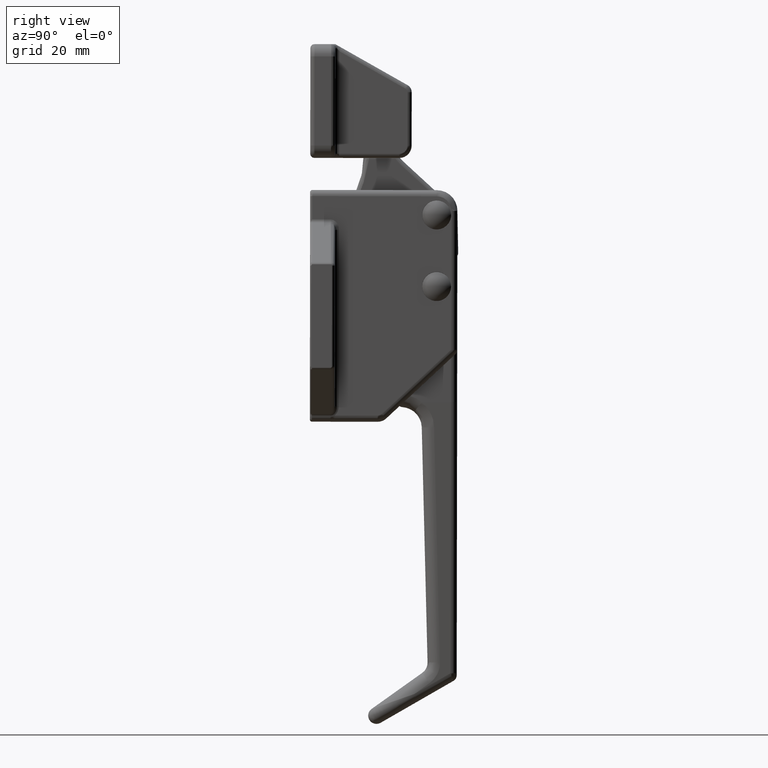
[diagram: clean part render]
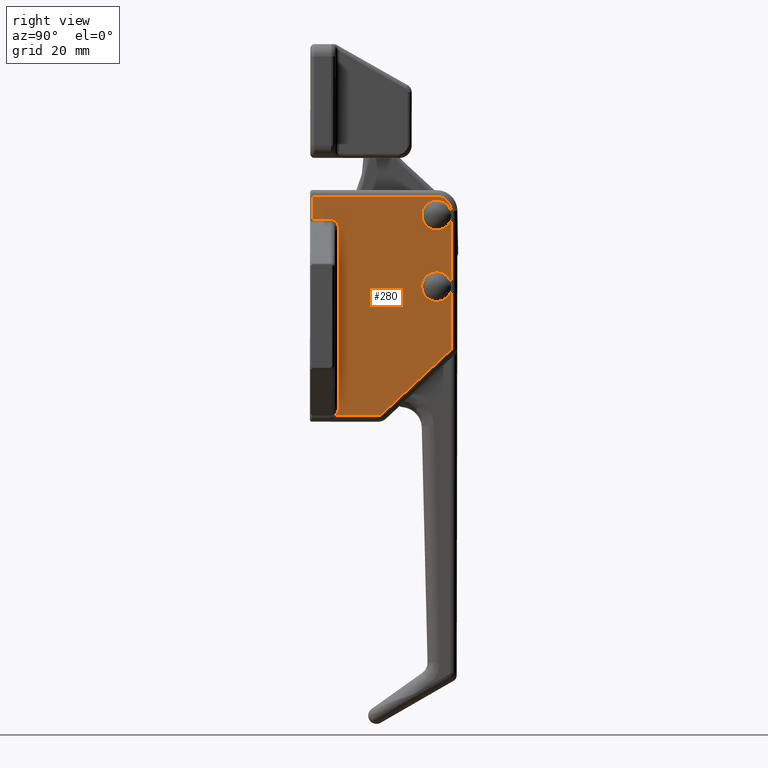
[diagram: same view with one face highlighted and labeled with its STEP entity id]
A machine part, right view. The second image highlights one B-rep face of the part: STEP entity #280.
In plain terms, the highlighted planar face has unit normal (-1, 0, 0).
Its self-contained STEP definition (entity closure, byte-faithful):
#280=ADVANCED_FACE('',(#1247),#1246,.F.);
#1246=PLANE('',#9953);
#1247=FACE_OUTER_BOUND('',#9954,.T.);
#9950=CARTESIAN_POINT('',(1.45000000000E+001,-2.86002735422E+000,-3.09432837250E+001));
#9951=DIRECTION('',(-1.00000000000E+000,0.00000000000E+000,0.00000000000E+000));
#9952=DIRECTION('',(0.00000000000E+000,0.00000000000E+000,1.00000000000E+000));
#9953=AXIS2_PLACEMENT_3D('',#9950,#9951,#9952);
#9954=EDGE_LOOP('',(#23897,#23898,#23899,#23900,#23901,#23902,#23903,#23904,#23905,#23906,#23907,#23908,#23909,#23910,#23911,#23912,#23913,#23914,#23915));
#23897=ORIENTED_EDGE('',*,*,#27979,.F.);
#23898=ORIENTED_EDGE('',*,*,#27980,.F.);
#23899=ORIENTED_EDGE('',*,*,#27981,.F.);
#23900=ORIENTED_EDGE('',*,*,#27982,.F.);
#23901=ORIENTED_EDGE('',*,*,#27983,.F.);
#23902=ORIENTED_EDGE('',*,*,#27984,.F.);
#23903=ORIENTED_EDGE('',*,*,#27985,.F.);
#23904=ORIENTED_EDGE('',*,*,#27986,.F.);
#23905=ORIENTED_EDGE('',*,*,#27987,.F.);
#23906=ORIENTED_EDGE('',*,*,#27988,.F.);
#23907=ORIENTED_EDGE('',*,*,#27989,.F.);
#23908=ORIENTED_EDGE('',*,*,#27990,.F.);
#23909=ORIENTED_EDGE('',*,*,#27991,.F.);
#23910=ORIENTED_EDGE('',*,*,#27992,.F.);
#23911=ORIENTED_EDGE('',*,*,#27993,.F.);
#23912=ORIENTED_EDGE('',*,*,#27994,.F.);
#23913=ORIENTED_EDGE('',*,*,#27995,.F.);
#23914=ORIENTED_EDGE('',*,*,#27996,.F.);
#23915=ORIENTED_EDGE('',*,*,#27997,.F.);
#27979=EDGE_CURVE('',#30287,#30288,#30289,.T.);
#27980=EDGE_CURVE('',#30295,#30287,#30296,.T.);
#27981=EDGE_CURVE('',#30302,#30295,#30303,.T.);
#27982=EDGE_CURVE('',#30309,#30302,#30310,.T.);
#27983=EDGE_CURVE('',#30316,#30309,#30317,.T.);
#27984=EDGE_CURVE('',#30323,#30316,#30324,.T.);
#27985=EDGE_CURVE('',#30330,#30323,#30331,.T.);
#27986=EDGE_CURVE('',#30337,#30330,#30338,.T.);
#27987=EDGE_CURVE('',#30344,#30337,#30345,.T.);
#27988=EDGE_CURVE('',#30351,#30344,#30352,.T.);
#27989=EDGE_CURVE('',#30358,#30351,#30359,.T.);
#27990=EDGE_CURVE('',#30365,#30358,#30366,.T.);
#27991=EDGE_CURVE('',#30372,#30365,#30373,.T.);
#27992=EDGE_CURVE('',#30379,#30372,#30380,.T.);
#27993=EDGE_CURVE('',#30386,#30379,#30387,.T.);
#27994=EDGE_CURVE('',#30393,#30386,#30394,.T.);
#27995=EDGE_CURVE('',#30400,#30393,#30401,.T.);
#27996=EDGE_CURVE('',#30407,#30400,#30408,.T.);
#27997=EDGE_CURVE('',#30288,#30407,#30414,.T.);
#30287=VERTEX_POINT('',#43655);
#30288=VERTEX_POINT('',#43656);
#30289=LINE('',#43657,#43658);
#30295=VERTEX_POINT('',#43660);
#30296=LINE('',#43661,#43662);
#30302=VERTEX_POINT('',#43664);
#30303=CIRCLE('',#43668,3.60000000000E+000);
#30309=VERTEX_POINT('',#43669);
#30310=CIRCLE('',#43673,3.60000000000E+000);
#30316=VERTEX_POINT('',#43674);
#30317=CIRCLE('',#43678,3.60000000000E+000);
#30323=VERTEX_POINT('',#43679);
#30324=LINE('',#43680,#43681);
#30330=VERTEX_POINT('',#43683);
#30331=CIRCLE('',#43687,3.60000000000E+000);
#30337=VERTEX_POINT('',#43688);
#30338=CIRCLE('',#43692,3.60000000000E+000);
#30344=VERTEX_POINT('',#43693);
#30345=CIRCLE('',#43697,3.60000000000E+000);
#30351=VERTEX_POINT('',#43698);
#30352=LINE('',#43699,#43700);
#30358=VERTEX_POINT('',#43702);
#30359=(BOUNDED_CURVE() B_SPLINE_CURVE(3,(#43703,#43704,#43705,#43706,#43707,#43708,#43709,#43710,#43711,#43712,#43713,#43714,#43715,#43716,#43717,#43718,#43719,#43720,#43721,#43722,#43723,#43724),.UNSPECIFIED.,.F.,.F.) B_SPLINE_CURVE_WITH_KNOTS((4,2,2,2,2,2,2,2,2,2,4),(0.00000000000E+000,1.25000000000E-001,1.87500000000E-001,2.18750000000E-001,2.34375000000E-001,2.50000000000E-001,5.00000000000E-001,5.62500000000E-001,6.25000000000E-001,7.50000000000E-001,1.00000000000E+000),.UNSPECIFIED.) CURVE() GEOMETRIC_REPRESENTATION_ITEM() RATIONAL_B_SPLINE_CURVE((1.00000000000E+000,1.00000000000E+000,1.00000000000E+000,1.00000000000E+000,1.00000000000E+000,1.00000000000E+000,1.00000000000E+000,1.00000000000E+000,1.00000000000E+000,1.00000000000E+000,1.00000000000E+000,1.00000000000E+000,1.00000000000E+000,1.00000000000E+000,1.00000000000E+000,1.00000000000E+000,1.00000000000E+000,1.00000000000E+000,1.00000000000E+000,1.00000000000E+000,1.00000000000E+000,1.00000000000E+000)) REPRESENTATION_ITEM('') );
#30365=VERTEX_POINT('',#43725);
#30366=LINE('',#43726,#43727);
#30372=VERTEX_POINT('',#43729);
#30373=LINE('',#43730,#43731);
#30379=VERTEX_POINT('',#43733);
#30380=LINE('',#43734,#43735);
#30386=VERTEX_POINT('',#43737);
#30387=(BOUNDED_CURVE() B_SPLINE_CURVE(3,(#43738,#43739,#43740,#43741,#43742,#43743,#43744,#43745,#43746,#43747),.UNSPECIFIED.,.F.,.F.) B_SPLINE_CURVE_WITH_KNOTS((4,2,2,2,4),(0.00000000000E+000,2.50000000000E-001,5.00000000000E-001,7.50000000000E-001,1.00000000000E+000),.UNSPECIFIED.) CURVE() GEOMETRIC_REPRESENTATION_ITEM() RATIONAL_B_SPLINE_CURVE((1.00000000000E+000,1.00000000000E+000,1.00000000000E+000,1.00000000000E+000,1.00000000000E+000,1.00000000000E+000,1.00000000000E+000,1.00000000000E+000,1.00000000000E+000,1.00000000000E+000)) REPRESENTATION_ITEM('') );
#30393=VERTEX_POINT('',#43748);
#30394=LINE('',#43749,#43750);
#30400=VERTEX_POINT('',#43752);
#30401=(BOUNDED_CURVE() B_SPLINE_CURVE(3,(#43753,#43754,#43755,#43756,#43757,#43758),.UNSPECIFIED.,.F.,.F.) B_SPLINE_CURVE_WITH_KNOTS((4,2,4),(0.00000000000E+000,5.00000000000E-001,1.00000000000E+000),.UNSPECIFIED.) CURVE() GEOMETRIC_REPRESENTATION_ITEM() RATIONAL_B_SPLINE_CURVE((1.00000000000E+000,1.00000000000E+000,1.00000000000E+000,1.00000000000E+000,1.00000000000E+000,1.00000000000E+000)) REPRESENTATION_ITEM('') );
#30407=VERTEX_POINT('',#43759);
#30408=LINE('',#43760,#43761);
#30414=CIRCLE('',#43766,1.50000000000E+000);
#43655=CARTESIAN_POINT('',(1.45000000000E+001,3.41000000000E+001,-9.56744531311E+000));
#43656=CARTESIAN_POINT('',(1.45000000000E+001,1.74408085830E+001,-2.50972000244E+001));
#43657=CARTESIAN_POINT('',(1.45000000000E+001,3.41000000000E+001,-9.56744531311E+000));
#43658=VECTOR('',#43659,2.27750288707E+001);
#43659=DIRECTION('',(0.00000000000E+000,-7.31467411594E-001,-6.81876400660E-001));
#43660=CARTESIAN_POINT('',(1.45000000000E+001,3.41000000000E+001,4.85738392968E+000));
#43661=CARTESIAN_POINT('',(1.45000000000E+001,3.41000000000E+001,4.85738392968E+000));
#43662=VECTOR('',#43663,1.44248292428E+001);
#43663=DIRECTION('',(-1.23145779371E-016,4.92583117485E-016,-1.00000000000E+000));
#43664=CARTESIAN_POINT('',(1.45000000000E+001,3.06006360142E+001,2.09999896318E+000));
#43665=CARTESIAN_POINT('',(1.45000000000E+001,3.06000000000E+001,5.69999890700E+000));
#43666=DIRECTION('',(1.00000000000E+000,0.00000000000E+000,-0.00000000000E+000));
#43667=DIRECTION('',(0.00000000000E+000,9.72222222222E-001,2.34059715922E-001));
#43668=AXIS2_PLACEMENT_3D('',#43665,#43666,#43667);
#43669=CARTESIAN_POINT('',(1.45000000000E+001,3.06000001837E+001,9.29999890700E+000));
#43670=CARTESIAN_POINT('',(1.45000000000E+001,3.06000000000E+001,5.69999890700E+000));
#43671=DIRECTION('',(1.00000000000E+000,0.00000000000E+000,-0.00000000000E+000));
#43672=DIRECTION('',(0.00000000000E+000,9.72222222222E-001,2.34059715922E-001));
#43673=AXIS2_PLACEMENT_3D('',#43670,#43671,#43672);
#43674=CARTESIAN_POINT('',(1.45000000000E+001,3.41000000000E+001,6.54261388432E+000));
#43675=CARTESIAN_POINT('',(1.45000000000E+001,3.06000000000E+001,5.69999890700E+000));
#43676=DIRECTION('',(1.00000000000E+000,0.00000000000E+000,-0.00000000000E+000));
#43677=DIRECTION('',(0.00000000000E+000,9.72222222222E-001,2.34059715922E-001));
#43678=AXIS2_PLACEMENT_3D('',#43675,#43676,#43677);
#43679=CARTESIAN_POINT('',(1.45000000000E+001,3.41000000000E+001,2.21573839297E+001));
#43680=CARTESIAN_POINT('',(1.45000000000E+001,3.41000000000E+001,2.21573839297E+001));
#43681=VECTOR('',#43682,1.56147700454E+001);
#43682=DIRECTION('',(0.00000000000E+000,0.00000000000E+000,-1.00000000000E+000));
#43683=CARTESIAN_POINT('',(1.45000000000E+001,3.06006360142E+001,1.93999989632E+001));
#43684=CARTESIAN_POINT('',(1.45000000000E+001,3.06000000000E+001,2.29999989070E+001));
#43685=DIRECTION('',(1.00000000000E+000,0.00000000000E+000,-0.00000000000E+000));
#43686=DIRECTION('',(0.00000000000E+000,9.72222222222E-001,2.34059715922E-001));
#43687=AXIS2_PLACEMENT_3D('',#43684,#43685,#43686);
#43688=CARTESIAN_POINT('',(1.45000000000E+001,3.06000001837E+001,2.65999989070E+001));
#43689=CARTESIAN_POINT('',(1.45000000000E+001,3.06000000000E+001,2.29999989070E+001));
#43690=DIRECTION('',(1.00000000000E+000,0.00000000000E+000,-0.00000000000E+000));
#43691=DIRECTION('',(0.00000000000E+000,9.72222222222E-001,2.34059715922E-001));
#43692=AXIS2_PLACEMENT_3D('',#43689,#43690,#43691);
#43693=CARTESIAN_POINT('',(1.45000000000E+001,3.41000000000E+001,2.38426138843E+001));
#43694=CARTESIAN_POINT('',(1.45000000000E+001,3.06000000000E+001,2.29999989070E+001));
#43695=DIRECTION('',(1.00000000000E+000,0.00000000000E+000,-0.00000000000E+000));
#43696=DIRECTION('',(0.00000000000E+000,9.72222222222E-001,2.34059715922E-001));
#43697=AXIS2_PLACEMENT_3D('',#43694,#43695,#43696);
#43698=CARTESIAN_POINT('',(1.45000000000E+001,3.41000000000E+001,2.39999989070E+001));
#43699=CARTESIAN_POINT('',(1.45000000000E+001,3.41000000000E+001,2.39999989070E+001));
#43700=VECTOR('',#43701,1.57385022682E-001);
#43701=DIRECTION('',(0.00000000000E+000,4.51467823081E-014,-1.00000000000E+000));
#43702=CARTESIAN_POINT('',(1.45000000000E+001,3.06000000000E+001,2.74999989070E+001));
#43703=CARTESIAN_POINT('',(1.45000000000E+001,3.06000000000E+001,2.74999989070E+001));
#43704=CARTESIAN_POINT('',(1.45000000000E+001,3.08197124915E+001,2.74999332303E+001));
#43705=CARTESIAN_POINT('',(1.44999999973E+001,3.10394080246E+001,2.74791582838E+001));
#43706=CARTESIAN_POINT('',(1.44999999983E+001,3.13631462917E+001,2.74174798847E+001));
#43707=CARTESIAN_POINT('',(1.44999999992E+001,3.14700924054E+001,2.73918457435E+001));
#43708=CARTESIAN_POINT('',(1.45000000000E+001,3.16283553967E+001,2.73459515657E+001));
#43709=CARTESIAN_POINT('',(1.45000000001E+001,3.16807505223E+001,2.73294137029E+001));
#43710=CARTESIAN_POINT('',(1.44999999998E+001,3.17587178110E+001,2.73027744799E+001));
#43711=CARTESIAN_POINT('',(1.44999999995E+001,3.17848470768E+001,2.72935210315E+001));
#43712=CARTESIAN_POINT('',(1.44999999988E+001,3.18405333599E+001,2.72729755262E+001));
#43713=CARTESIAN_POINT('',(1.44999999984E+001,3.18682459128E+001,2.72623484385E+001));
#43714=CARTESIAN_POINT('',(1.44999999890E+001,3.23369866798E+001,2.70757226539E+001));
#43715=CARTESIAN_POINT('',(1.44999999563E+001,3.27417411023E+001,2.68091070267E+001));
#43716=CARTESIAN_POINT('',(1.44999999213E+001,3.31612181241E+001,2.63890705470E+001));
#43717=CARTESIAN_POINT('',(1.44999999145E+001,3.32408349508E+001,2.63007890356E+001));
#43718=CARTESIAN_POINT('',(1.44999999019E+001,3.33906871729E+001,2.61165909334E+001));
#43719=CARTESIAN_POINT('',(1.44999998971E+001,3.34562254800E+001,2.60270154360E+001));
#43720=CARTESIAN_POINT('',(1.44999998904E+001,3.36445403742E+001,2.57425581210E+001));
#43721=CARTESIAN_POINT('',(1.44999998957E+001,3.37515209185E+001,2.55406363670E+001));
#43722=CARTESIAN_POINT('',(1.44999999350E+001,3.40106939469E+001,2.49095002984E+001));
#43723=CARTESIAN_POINT('',(1.45000000000E+001,3.41002735422E+001,2.44547827446E+001));
#43724=CARTESIAN_POINT('',(1.45000000000E+001,3.41000000000E+001,2.39999989070E+001));
#43725=CARTESIAN_POINT('',(1.45000000000E+001,5.00000000000E-001,2.74999989070E+001));
#43726=CARTESIAN_POINT('',(1.45000000000E+001,5.00000000000E-001,2.74999989070E+001));
#43727=VECTOR('',#43728,3.01000000000E+001);
#43728=DIRECTION('',(-5.90151773887E-017,1.00000000000E+000,-2.36060709555E-016));
#43729=CARTESIAN_POINT('',(1.45000000000E+001,5.00000000000E-001,2.18801853447E+001));
#43730=CARTESIAN_POINT('',(1.45000000000E+001,5.00000000000E-001,2.18801853447E+001));
#43731=VECTOR('',#43732,5.61981356226E+000);
#43732=DIRECTION('',(3.16088215333E-016,-7.90220538333E-017,1.00000000000E+000));
#43733=CARTESIAN_POINT('',(1.45000000000E+001,5.00000000000E+000,2.18801853447E+001));
#43734=CARTESIAN_POINT('',(1.45000000000E+001,5.00000000000E+000,2.18801853447E+001));
#43735=VECTOR('',#43736,4.50000000000E+000);
#43736=DIRECTION('',(0.00000000000E+000,-1.00000000000E+000,0.00000000000E+000));
#43737=CARTESIAN_POINT('',(1.45000000000E+001,7.00000000000E+000,1.93233522931E+001));
#43738=CARTESIAN_POINT('',(1.45000000000E+001,7.00000000000E+000,1.93233522931E+001));
#43739=CARTESIAN_POINT('',(1.45000000000E+001,7.00000000000E+000,1.96581012941E+001));
#43740=CARTESIAN_POINT('',(1.45000000000E+001,6.94794535063E+000,1.99925979434E+001));
#43741=CARTESIAN_POINT('',(1.45000000000E+001,6.74757277942E+000,2.06110219392E+001));
#43742=CARTESIAN_POINT('',(1.45000000000E+001,6.59933367894E+000,2.08946456660E+001));
#43743=CARTESIAN_POINT('',(1.45000000000E+001,6.22909344581E+000,2.13679668986E+001));
#43744=CARTESIAN_POINT('',(1.45000000000E+001,6.00723795152E+000,2.15574782158E+001));
#43745=CARTESIAN_POINT('',(1.45000000000E+001,5.52349577794E+000,2.18136378193E+001));
#43746=CARTESIAN_POINT('',(1.45000000000E+001,5.26184658259E+000,2.18801853447E+001));
#43747=CARTESIAN_POINT('',(1.45000000000E+001,5.00000000000E+000,2.18801853447E+001));
#43748=CARTESIAN_POINT('',(1.45000000000E+001,7.00000000000E+000,-2.32221758760E+001));
#43749=CARTESIAN_POINT('',(1.45000000000E+001,7.00000000000E+000,-2.32221758760E+001));
#43750=VECTOR('',#43751,4.25455281691E+001);
#43751=DIRECTION('',(0.00000000000E+000,0.00000000000E+000,1.00000000000E+000));
#43752=CARTESIAN_POINT('',(1.45000000029E+001,6.04439084527E+000,-2.54999989861E+001));
#43753=CARTESIAN_POINT('',(1.45000000029E+001,6.04439084527E+000,-2.54999989861E+001));
#43754=CARTESIAN_POINT('',(1.45000000000E+001,6.33474844769E+000,-2.52624593898E+001));
#43755=CARTESIAN_POINT('',(1.45000000000E+001,6.57835925758E+000,-2.49242064847E+001));
#43756=CARTESIAN_POINT('',(1.45000000000E+001,6.91139004362E+000,-2.41310567670E+001));
#43757=CARTESIAN_POINT('',(1.45000000000E+001,7.00007183684E+000,-2.36769170666E+001));
#43758=CARTESIAN_POINT('',(1.45000000000E+001,7.00000000000E+000,-2.32221758760E+001));
#43759=CARTESIAN_POINT('',(1.45000000000E+001,1.64179939820E+001,-2.54999989070E+001));
#43760=CARTESIAN_POINT('',(1.45000000000E+001,1.64179939820E+001,-2.54999989070E+001));
#43761=VECTOR('',#43762,1.03736031367E+001);
#43762=DIRECTION('',(2.77407208735E-010,-1.00000000000E+000,-7.62773999141E-009));
#43763=CARTESIAN_POINT('',(1.45000000000E+001,1.64179939820E+001,-2.39999989070E+001));
#43764=DIRECTION('',(-1.00000000000E+000,-1.54800712336E-014,1.95681998542E-014));
#43765=DIRECTION('',(2.48689957516E-014,-6.81876400660E-001,7.31467411594E-001));
#43766=AXIS2_PLACEMENT_3D('',#43763,#43764,#43765);